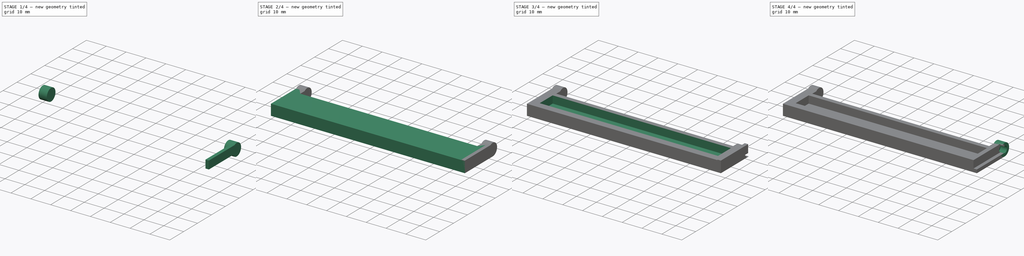
[diagram: build sequence overview — one tinted view per stage of 4, left to right]
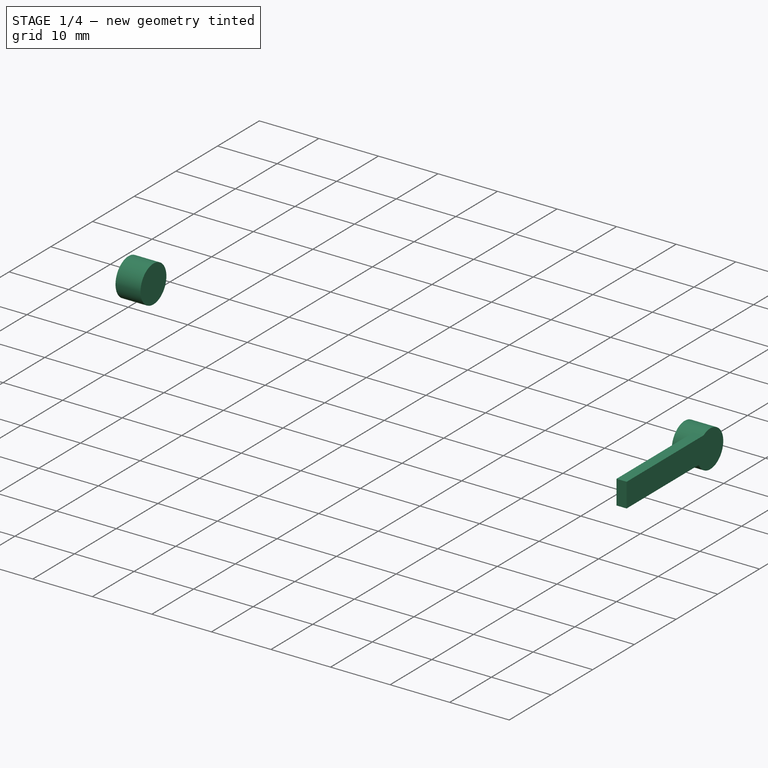
[diagram: stage 1 of 4 — iso view after this stage's code; geometry added in this stage tinted green]
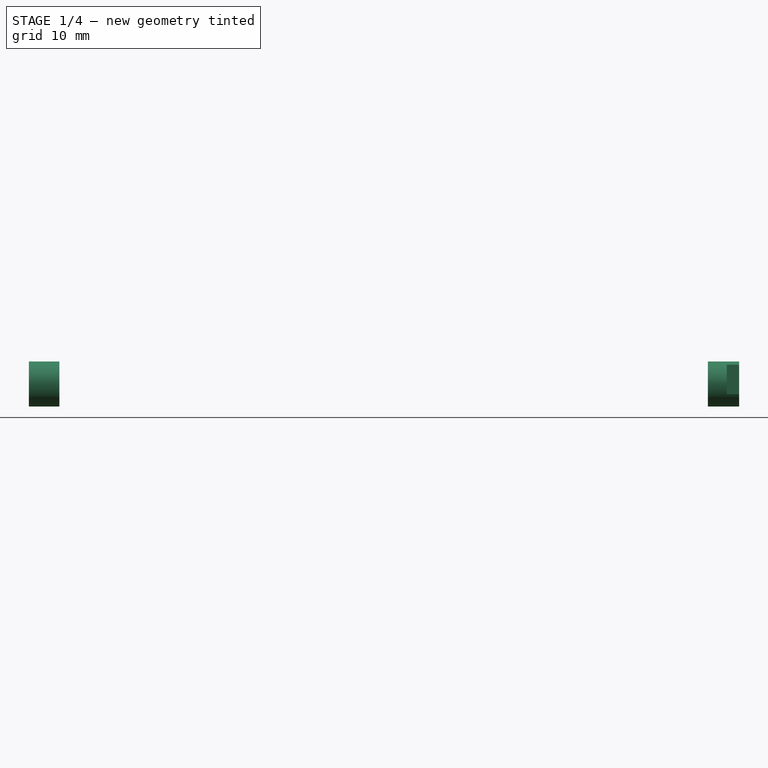
[diagram: stage 1 of 4 — front view after this stage's code; geometry added in this stage tinted green]
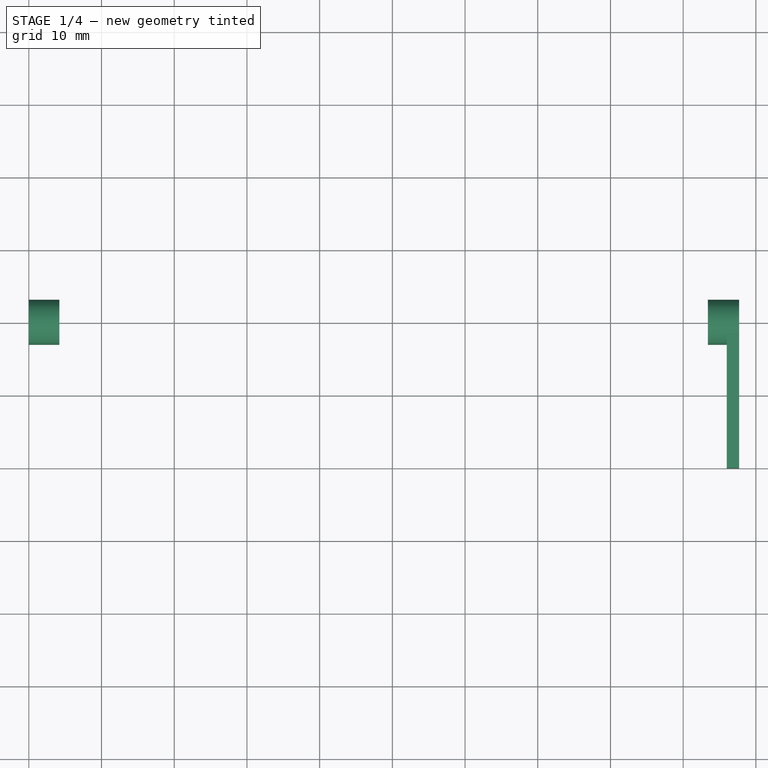
[diagram: stage 1 of 4 — top view after this stage's code; geometry added in this stage tinted green]
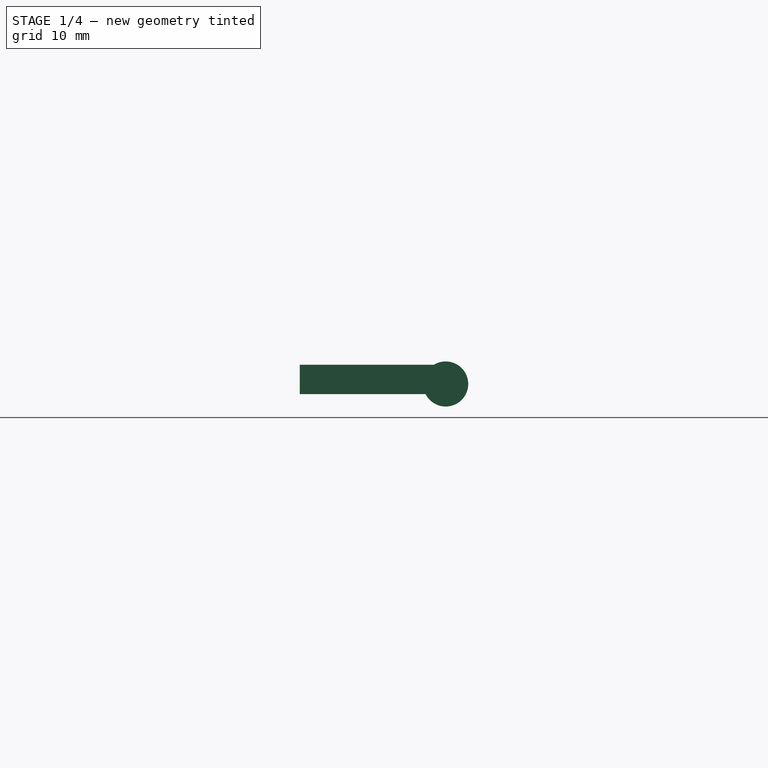
[diagram: stage 1 of 4 — right view after this stage's code; geometry added in this stage tinted green]
FCSTD DOCUMENT  (FreeCAD 0.19R24276 (Git))
Label: prendedorLancheira2
License: All rights reserved
LicenseURL: http://en.wikipedia.org/wiki/All_rights_reserved
objects: Sketcher::SketchObject×9, PartDesign::Pad×6, PartDesign::Body×6, PartDesign::Pocket×3, Part::Fuse×3, Part::Cut×2
note: 38 computed .brp shape members not serialized (recipe doc carries the construction recipe); baked Part::Feature solids carry a one-line shape summary decoded from their .brp

FEATURE [PartDesign::Body] Body001
  Group = -> [Sketch004,Pad003]
  Origin = -> Origin001
  Tip = -> Pad003
FEATURE [Sketcher::SketchObject] Sketch005
  AttachmentOffset = pos=(0,0,93.4) rot=(0,0,1;0rad)
  FullyConstrained = true
  MapMode = 5
  Placement = pos=(93.4,-2.07e-14,2.07e-14) rot=(0.57735,0.57735,0.57735;2.0944rad)
  Support = -> [YZ_Plane002]
  sketch-geometry (1):
    g0: Circle CenterX=20.07 CenterY=3.1 CenterZ=0 NormalX=0 NormalY=0 NormalZ=1 AngleXU=0 Radius=3.1
  constraints (3):
    c: Radius(g0) = 3.1
    c: Tangent(g0,g-1)
    c: Distance(g0,g-2) = 20.07
FEATURE [PartDesign::Pad] Pad004
  Direction = (1,1,1)
  Length = 4.3
  Length2 = 100
  Placement = pos=(0,0,0) rot=(0.57735,0.57735,0.57735;2.0944rad)
  Profile = -> Sketch005
  Type = 0
FEATURE [Sketcher::SketchObject] Sketch006
  FullyConstrained = true
  MapMode = 5
  Placement = pos=(0,0,0) rot=(0.57735,0.57735,0.57735;2.0944rad)
  Support = -> [YZ_Plane003]
  sketch-geometry (1):
    g0: Circle CenterX=20.07 CenterY=3.1 CenterZ=0 NormalX=0 NormalY=0 NormalZ=1 AngleXU=0 Radius=3.1
  constraints (3):
    c: Radius(g0) = 3.1
    c: Tangent(g0,g-1)
    c: Distance(g0,g-2) = 20.07
FEATURE [PartDesign::Pad] Pad005
  Direction = (1,1,1)
  Length = 4.2
  Length2 = 100
  Placement = pos=(0,0,0) rot=(0.57735,0.57735,0.57735;2.0944rad)
  Profile = -> Sketch006
  Type = 0
FEATURE [PartDesign::Body] Body005
  Group = -> [Sketch008,Pad006,Sketch009,Pocket001]
  Origin = -> Origin005
  Tip = -> Pocket001
FEATURE [Sketcher::SketchObject] Sketch010
  FullyConstrained = true
  MapMode = 5
  Placement = pos=(0,0,0) rot=(-0.57735,-0.57735,0.57735;2.0944rad)
  Support = -> [Pad005]
  sketch-geometry (1):
    g0: Circle CenterX=20.07 CenterY=-3.1 CenterZ=0 NormalX=0 NormalY=0 NormalZ=1 AngleXU=0 Radius=1.6
  constraints (3):
    c: Radius(g0) = 1.6
    c: DistanceX(g0) = 20.07
    c: DistanceY(g0) = -3.1
FEATURE [PartDesign::Pocket] Pocket002
  BaseFeature = -> Pad005
  Length = 3.2
  Length2 = 100
  Placement = pos=(0,0,0) rot=(0.57735,0.57735,0.57735;2.0944rad)
  Profile = -> Sketch010
  Type = 0
FEATURE [Sketcher::SketchObject] Sketch011
  AttachmentOffset = pos=(0,0,97.7) rot=(0,0,1;0rad)
  FullyConstrained = true
  MapMode = 5
  Placement = pos=(97.7,-2.17e-14,2.17e-14) rot=(0.57735,0.57735,0.57735;2.0944rad)
  Support = -> [YZ_Plane006]
  sketch-geometry (4):
    g0: LineSegment StartX=0 StartY=5.75 StartZ=0 EndX=19.6 EndY=5.75 EndZ=0
    g1: LineSegment StartX=19.6 StartY=5.75 StartZ=0 EndX=19.6 EndY=1.7 EndZ=0
    g2: LineSegment StartX=19.6 StartY=1.7 StartZ=0 EndX=0 EndY=1.7 EndZ=0
    g3: LineSegment StartX=0 StartY=1.7 StartZ=0 EndX=0 EndY=5.75 EndZ=0
  constraints (12):
    c: Coincident(g0,g1)
    c: Coincident(g1,g2)
    c: Coincident(g2,g3)
    c: Coincident(g3,g0)
    c: Horizontal(g0)
    c: Horizontal(g2)
    c: Vertical(g1)
    c: Vertical(g3)
    c: PointOnObject(g0,g-2)
    c: DistanceX(g0,g0) = 19.6
    c: DistanceY(g3,g3) = 4.05
    c: Distance(g2,g-1) = 1.7
FEATURE [PartDesign::Pad] Pad007
  Direction = (1,1,1)
  Length = 1.7
  Length2 = 100
  Placement = pos=(0,0,0) rot=(0.57735,0.57735,0.57735;2.0944rad)
  Profile = -> Sketch011
  Reversed = true
  Type = 0
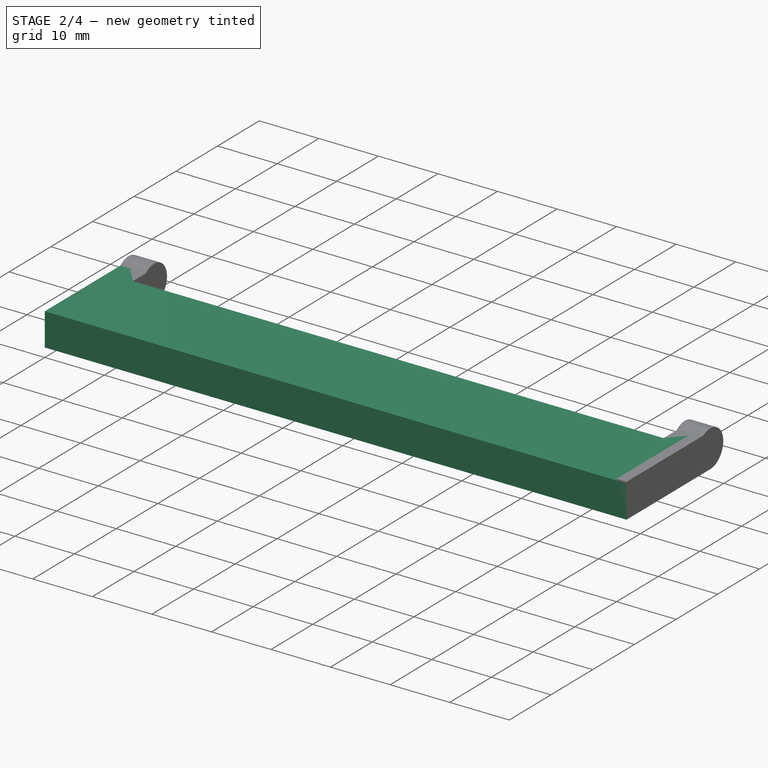
[diagram: stage 2 of 4 — iso view after this stage's code; geometry added in this stage tinted green]
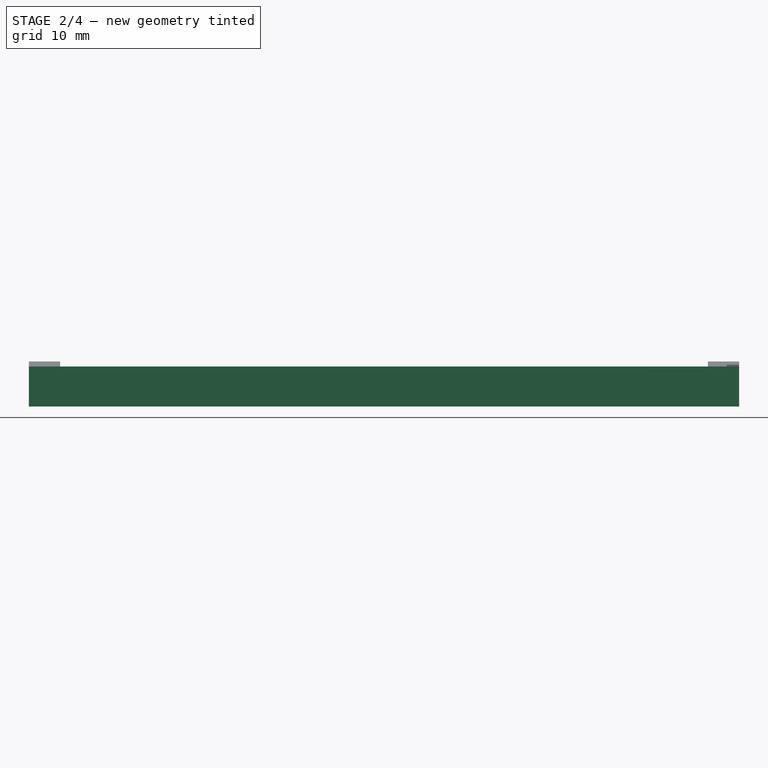
[diagram: stage 2 of 4 — front view after this stage's code; geometry added in this stage tinted green]
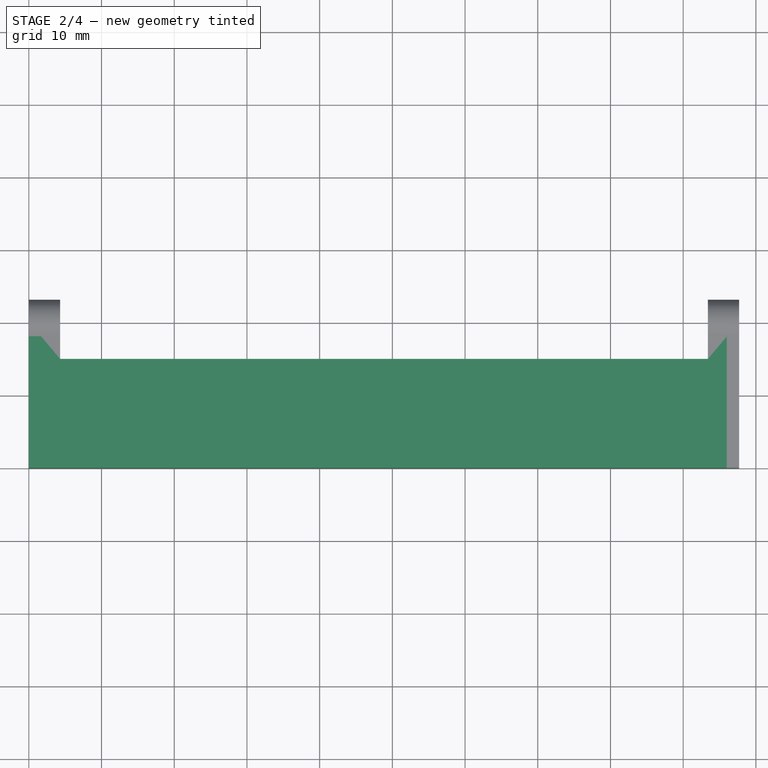
[diagram: stage 2 of 4 — top view after this stage's code; geometry added in this stage tinted green]
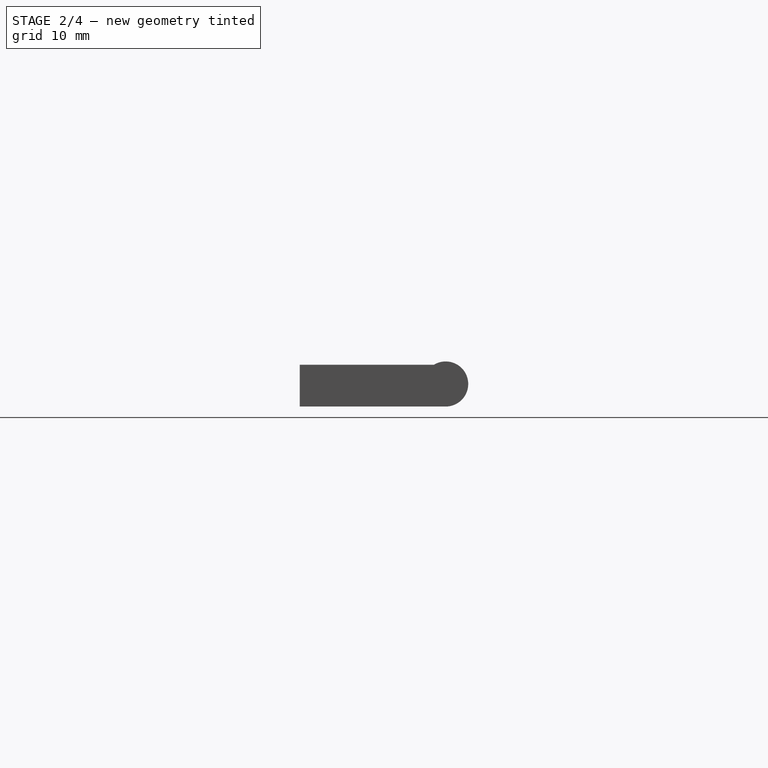
[diagram: stage 2 of 4 — right view after this stage's code; geometry added in this stage tinted green]
FEATURE [Sketcher::SketchObject] Sketch
  FullyConstrained = true
  MapMode = 5
  Support = -> [XY_Plane]
  sketch-geometry (8):
    g0: LineSegment StartX=0 StartY=0 StartZ=0 EndX=97.7 EndY=0 EndZ=0
    g1: LineSegment StartX=97.7 StartY=0 StartZ=0 EndX=97.7 EndY=20.1 EndZ=0
    g2: LineSegment StartX=97.7 StartY=20.1 StartZ=0 EndX=93.4 EndY=20.1 EndZ=0
    g3: LineSegment StartX=93.4 StartY=20.1 StartZ=0 EndX=93.4 EndY=15 EndZ=0
    g4: LineSegment StartX=93.4 StartY=15 StartZ=0 EndX=4.3 EndY=15 EndZ=0
    g5: LineSegment StartX=4.3 StartY=15 StartZ=0 EndX=4.3 EndY=20.1 EndZ=0
    g6: LineSegment StartX=4.3 StartY=20.1 StartZ=0 EndX=0 EndY=20.1 EndZ=0
    g7: LineSegment StartX=0 StartY=20.1 StartZ=0 EndX=0 EndY=0 EndZ=0
  constraints (23):
    c: Coincident(g-1,g0)
    c: PointOnObject(g0,g-1)
    c: Coincident(g0,g1)
    c: Coincident(g1,g2)
    c: Coincident(g2,g3)
    c: Coincident(g3,g4)
    c: Horizontal(g4)
    c: Coincident(g4,g5)
    c: Coincident(g5,g6)
    c: PointOnObject(g6,g-2)
    c: Coincident(g6,g7)
    c: Coincident(g7,g0)
    c: Vertical(g1)
    c: Vertical(g3)
    c: Vertical(g5)
    c: Horizontal(g6)
    c: Horizontal(g2)
    c: DistanceY(g7,g7) = 20.1
    c: DistanceX(g6,g6) = 4.3
    c: DistanceY(g5,g5) = 5.1
    c: DistanceX(g0,g0) = 97.7
    c: Equal(g6,g2)
    c: Equal(g5,g3)
FEATURE [PartDesign::Pad] Pad
  Direction = (1,1,1)
  Length = 5.5
  Length2 = 100
  Profile = -> Sketch
  Type = 0
FEATURE [PartDesign::Body] Body
  Group = -> [Sketch,Pad,Sketch001,Pocket]
  Origin = -> Origin
  Tip = -> Pocket
FEATURE [Sketcher::SketchObject] Sketch004
  FullyConstrained = true
  MapMode = 5
  Placement = pos=(0,0,0) rot=(0.57735,0.57735,0.57735;2.0944rad)
  Support = -> [YZ_Plane001]
  sketch-geometry (1):
    g0: Circle CenterX=20.07 CenterY=3.1 CenterZ=0 NormalX=0 NormalY=0 NormalZ=1 AngleXU=0 Radius=3.1
  constraints (3):
    c: Radius(g0) = 3.1
    c: Tangent(g0,g-1)
    c: Distance(g0,g-2) = 20.07
FEATURE [PartDesign::Pad] Pad003
  Direction = (1,1,1)
  Length = 4.3
  Length2 = 100
  Placement = pos=(0,0,0) rot=(0.57735,0.57735,0.57735;2.0944rad)
  Profile = -> Sketch004
  Type = 0
FEATURE [PartDesign::Body] Body002
  Group = -> [Sketch005,Pad004]
  Origin = -> Origin002
  Tip = -> Pad004
FEATURE [Part::Fuse] Fusion
  Base = -> Body001
  Tool = -> Body002
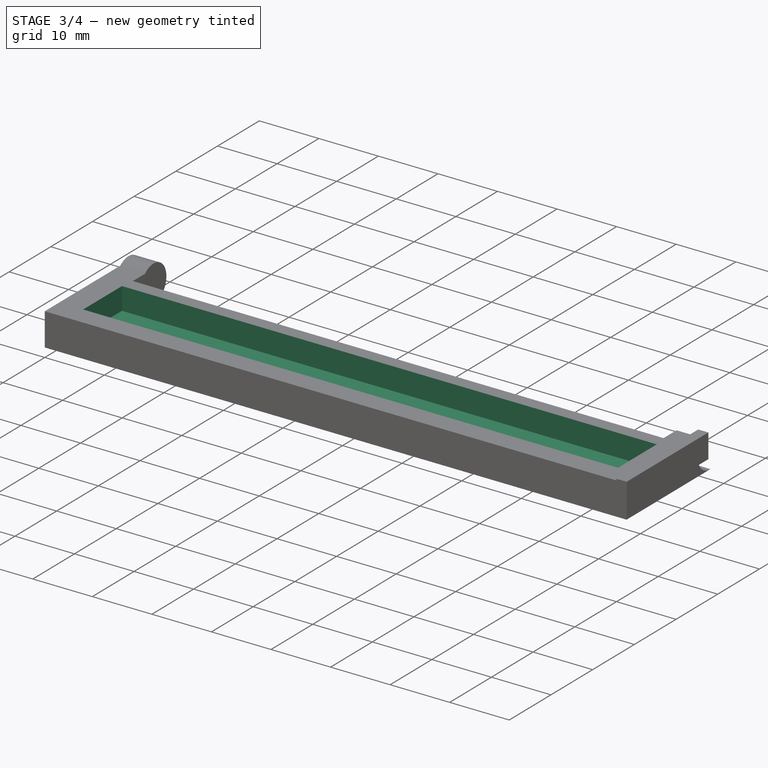
[diagram: stage 3 of 4 — iso view after this stage's code; geometry added in this stage tinted green]
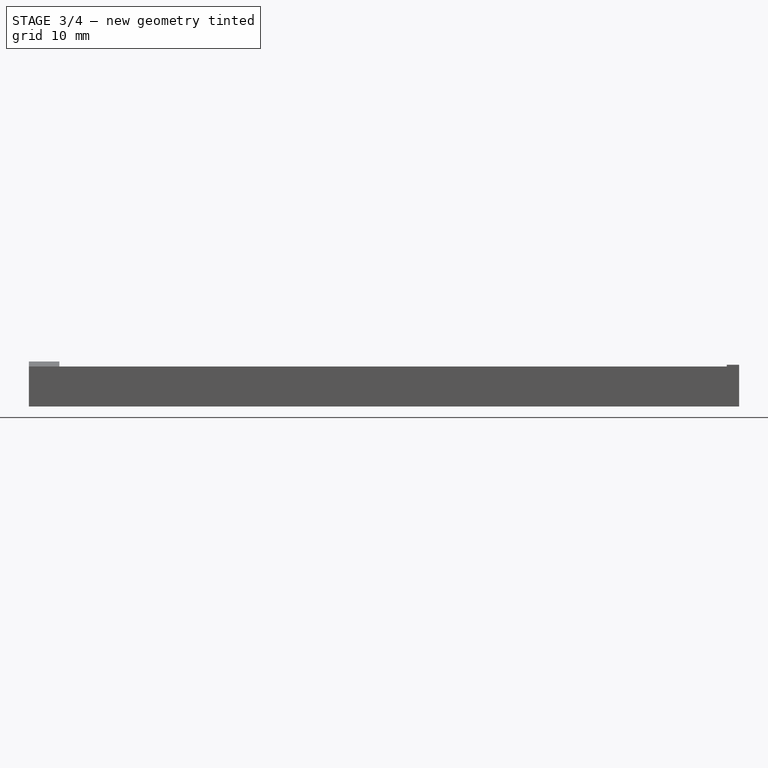
[diagram: stage 3 of 4 — front view after this stage's code; geometry added in this stage tinted green]
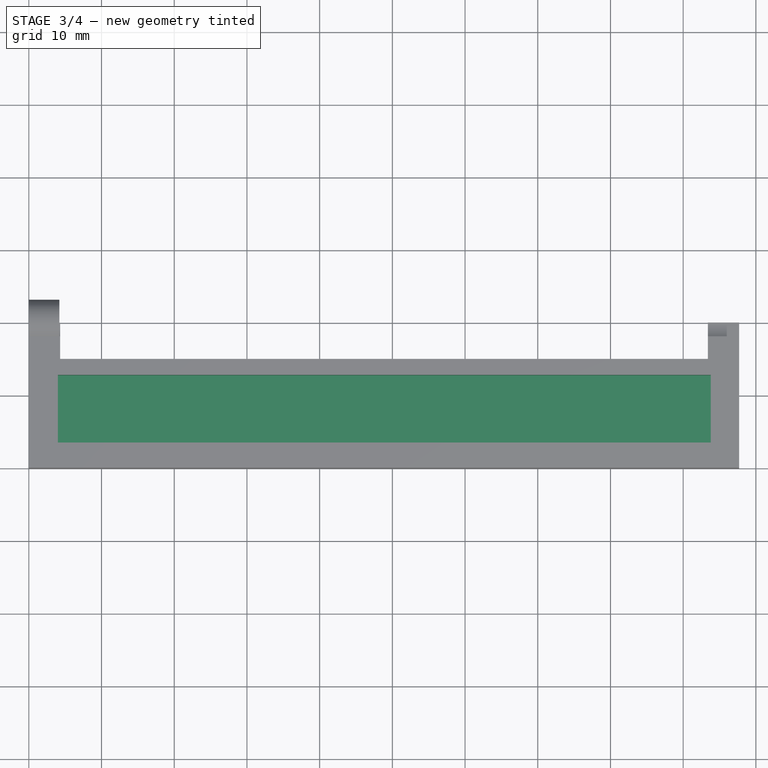
[diagram: stage 3 of 4 — top view after this stage's code; geometry added in this stage tinted green]
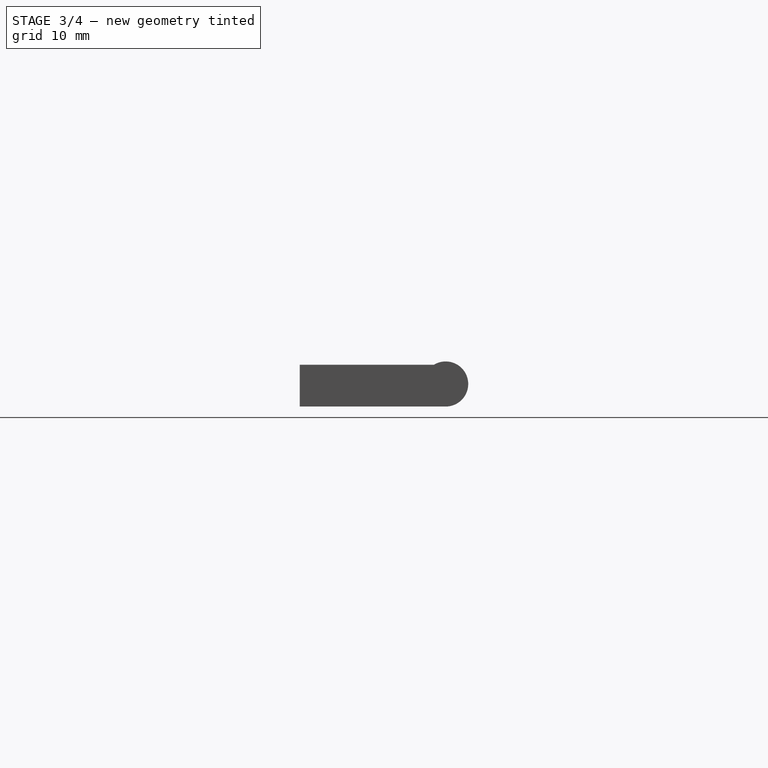
[diagram: stage 3 of 4 — right view after this stage's code; geometry added in this stage tinted green]
FEATURE [Sketcher::SketchObject] Sketch001
  FullyConstrained = true
  MapMode = 5
  Placement = pos=(0,0,5.5) rot=(0,0,1;0rad)
  Support = -> [Pad]
  sketch-geometry (4):
    g0: LineSegment StartX=4 StartY=12.8 StartZ=0 EndX=93.8 EndY=12.8 EndZ=0
    g1: LineSegment StartX=93.8 StartY=12.8 StartZ=0 EndX=93.8 EndY=3.5 EndZ=0
    g2: LineSegment StartX=93.8 StartY=3.5 StartZ=0 EndX=4 EndY=3.5 EndZ=0
    g3: LineSegment StartX=4 StartY=3.5 StartZ=0 EndX=4 EndY=12.8 EndZ=0
  constraints (12):
    c: Coincident(g0,g1)
    c: Coincident(g1,g2)
    c: Coincident(g2,g3)
    c: Coincident(g3,g0)
    c: Horizontal(g0)
    c: Horizontal(g2)
    c: Vertical(g1)
    c: Vertical(g3)
    c: DistanceY(g3,g3) = 9.3
    c: DistanceX(g2,g2) = 89.8
    c: DistanceX(g2) = 4
    c: DistanceY(g2) = 3.5
FEATURE [PartDesign::Pocket] Pocket
  BaseFeature = -> Pad
  Length = 3.75
  Length2 = 100
  Profile = -> Sketch001
  Type = 0
FEATURE [Part::Cut] Cut
  Base = -> Body
  Tool = -> Fusion
FEATURE [PartDesign::Body] Body003
  Group = -> [Sketch006,Pad005,Sketch010,Pocket002]
  Origin = -> Origin003
  Tip = -> Pocket002
FEATURE [Part::Fuse] Fusion001
  Base = -> Body003
  Tool = -> Cut
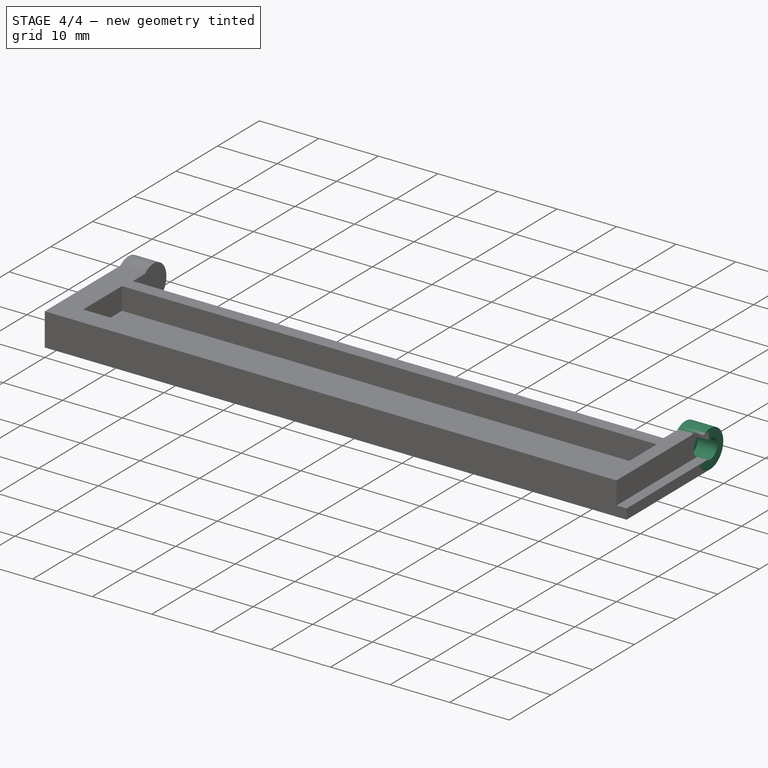
[diagram: stage 4 of 4 — iso view after this stage's code; geometry added in this stage tinted green]
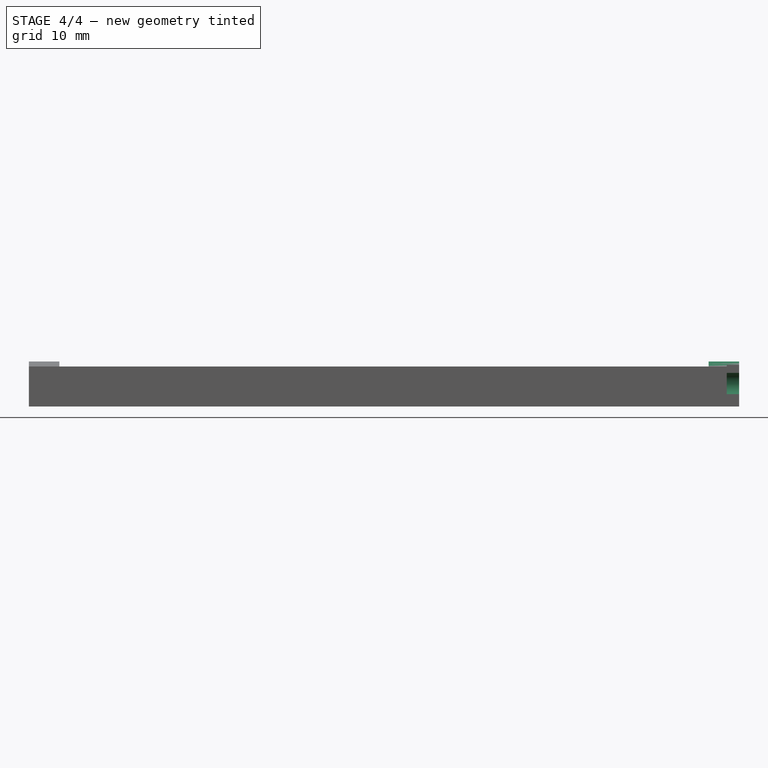
[diagram: stage 4 of 4 — front view after this stage's code; geometry added in this stage tinted green]
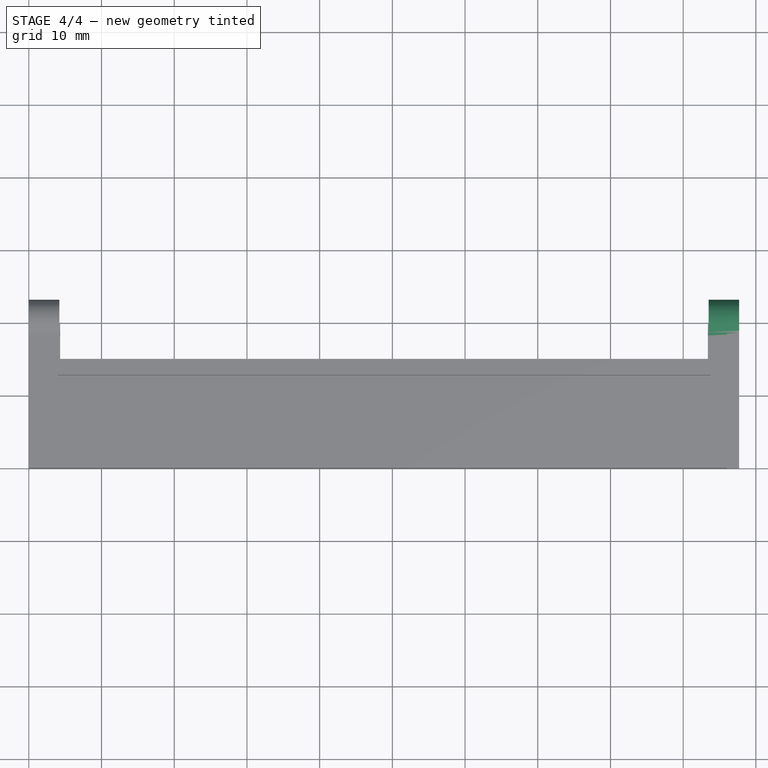
[diagram: stage 4 of 4 — top view after this stage's code; geometry added in this stage tinted green]
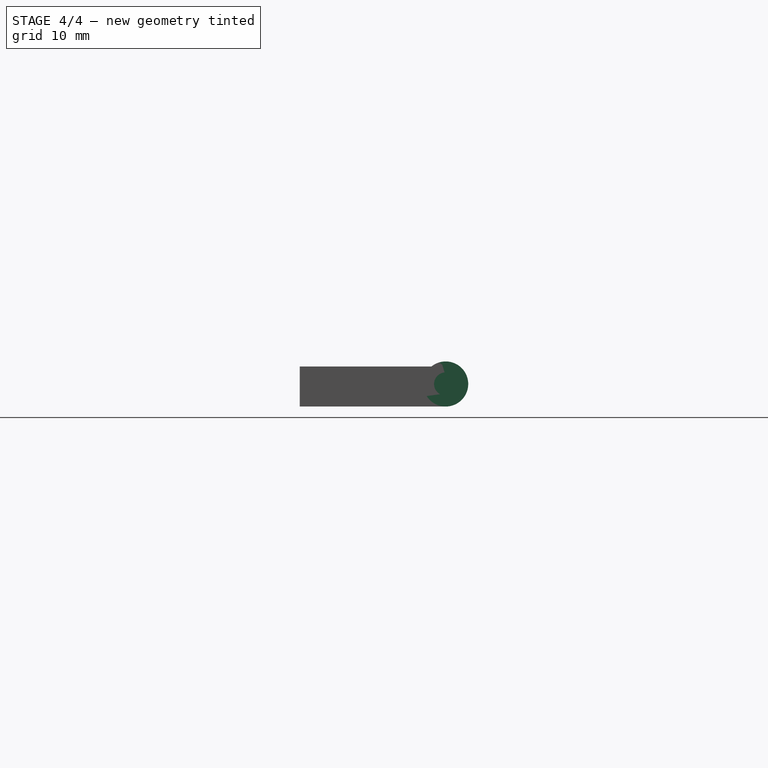
[diagram: stage 4 of 4 — right view after this stage's code; geometry added in this stage tinted green]
FEATURE [Sketcher::SketchObject] Sketch008
  AttachmentOffset = pos=(0,0,97.7) rot=(0,0,1;0rad)
  FullyConstrained = true
  MapMode = 5
  Placement = pos=(97.7,-2.17e-14,2.17e-14) rot=(0.57735,0.57735,0.57735;2.0944rad)
  Support = -> [YZ_Plane005]
  sketch-geometry (1):
    g0: Circle CenterX=20.07 CenterY=3.1 CenterZ=0 NormalX=0 NormalY=0 NormalZ=1 AngleXU=0 Radius=3.1
  constraints (3):
    c: Radius(g0) = 3.1
    c: Tangent(g0,g-1)
    c: Distance(g0,g-2) = 20.07
FEATURE [PartDesign::Pad] Pad006
  Direction = (1,1,1)
  Length = 4.2
  Length2 = 100
  Placement = pos=(0,0,0) rot=(0.57735,0.57735,0.57735;2.0944rad)
  Profile = -> Sketch008
  Reversed = true
  Type = 0
FEATURE [Sketcher::SketchObject] Sketch009
  FullyConstrained = true
  MapMode = 5
  Placement = pos=(97.7,-2.17e-14,0) rot=(0.57735,0.57735,0.57735;2.0944rad)
  Support = -> [Pad006]
  sketch-geometry (1):
    g0: Circle CenterX=20.07 CenterY=3.1 CenterZ=0 NormalX=0 NormalY=0 NormalZ=1 AngleXU=0 Radius=1.6
  constraints (3):
    c: Radius(g0) = 1.6
    c: DistanceX(g0) = 20.07
    c: DistanceY(g0) = 3.1
FEATURE [PartDesign::Pocket] Pocket001
  BaseFeature = -> Pad006
  Length = 3.2
  Length2 = 100
  Placement = pos=(0,0,0) rot=(0.57735,0.57735,0.57735;2.0944rad)
  Profile = -> Sketch009
  Type = 0
FEATURE [Part::Fuse] Fusion002
  Base = -> Body005
  Tool = -> Fusion001
FEATURE [PartDesign::Body] Body006
  Group = -> [Sketch011,Pad007]
  Origin = -> Origin006
  Tip = -> Pad007
FEATURE [Part::Cut] Cut001
  Base = -> Fusion002
  Tool = -> Body006
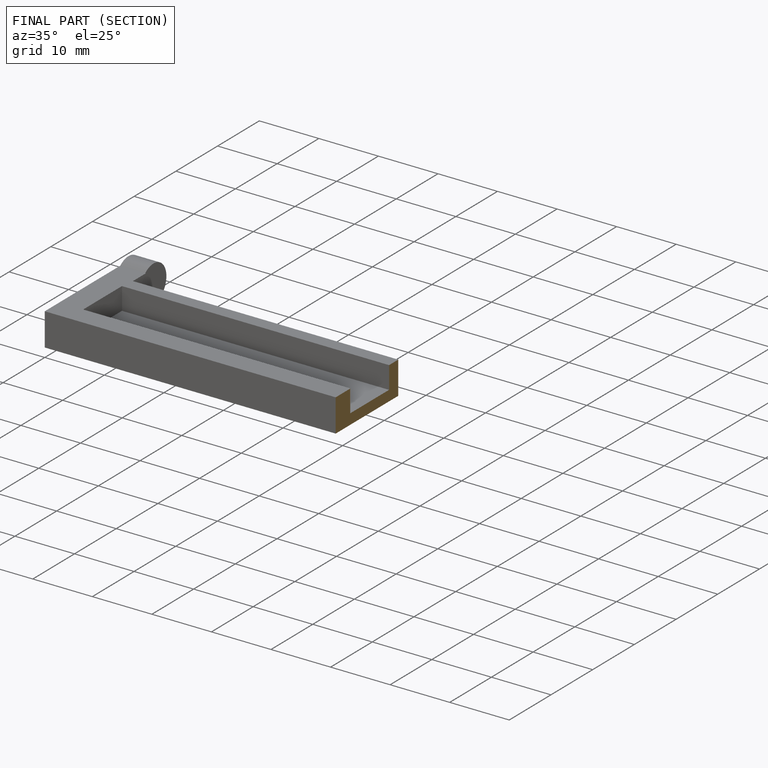
[diagram: finished part — half-section view (interior)]
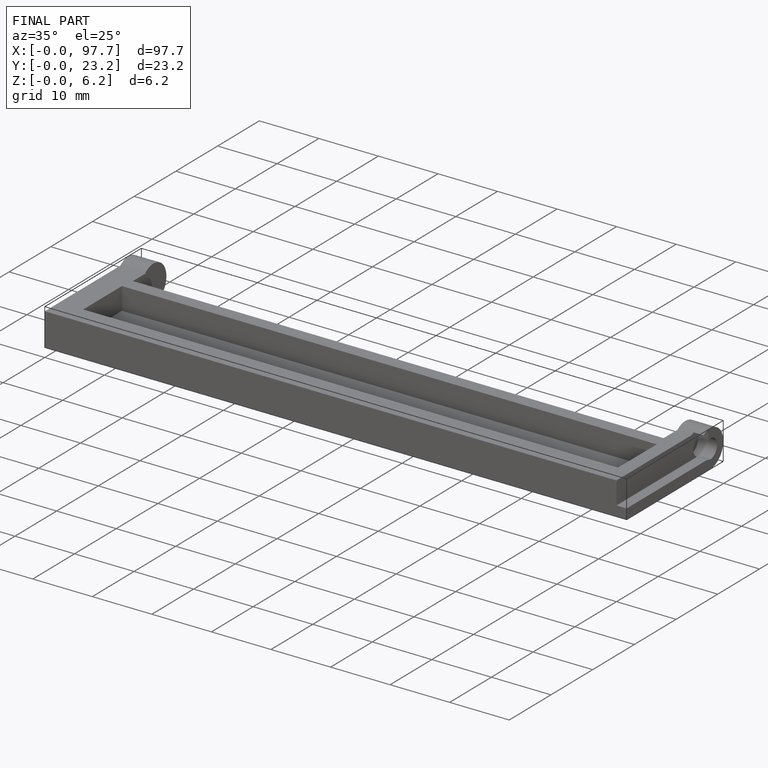
[diagram: finished part — iso view with bounding-box wireframe]
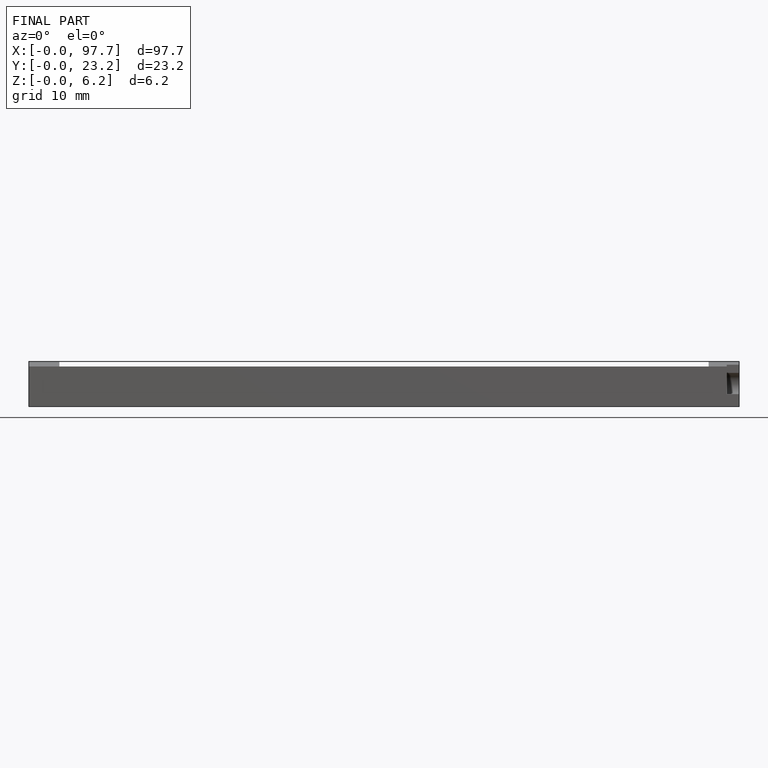
[diagram: finished part — front view with bounding-box wireframe]
